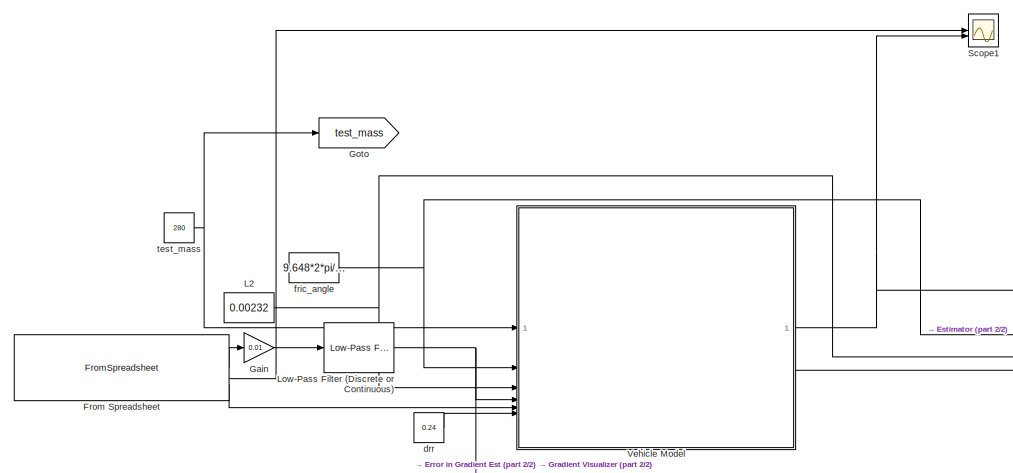
[diagram: root canvas - part 1/2, left side, full height]
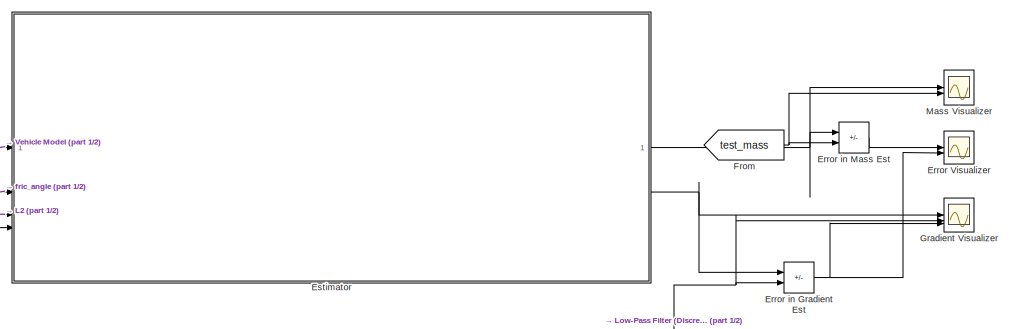
[diagram: root canvas - part 2/2, middle right region]
MODEL slx_bd5e65b6732f
KIND model
CONFIG AbsTol = auto
CONFIG EnableMultiTasking = off
CONFIG FixedStep = 0.001
CONFIG MaxStep = auto
CONFIG MinStep = auto
CONFIG RelTol = 1e-3
CONFIG SampleTimeConstraint = Unconstrained
CONFIG SolverName = ode4
CONFIG StartTime = 0.0
CONFIG StopTime = 100
BLOCK [Scope] Error Visualizer
  Floating = off
  NumInputPorts = 2
  ScopeSpecificationString = Simulink.scopes.TimeScopeBlockCfg('CurrentConfiguration', extmgr.ConfigurationSet(extmgr.Configuration('Core','General UI',true),extmgr.Configuration('Core','Source UI',true),extmgr.Configuration('Sources','WiredSimulink',true,'DataLoggingVariableName','ScopeData1'),extmgr.Configuration('Visuals','Time Domain',true,'SerializedDisplays',{struct('MinYLimReal','3.70571','MaxYLimReal','3.93861','YLabe...<+2107ch>
BLOCK [Sum] Error in Gradient Est
  IconShape = rectangular
  Inputs = +-
BLOCK [Sum] Error in Mass Est
  IconShape = rectangular
  Inputs = +-
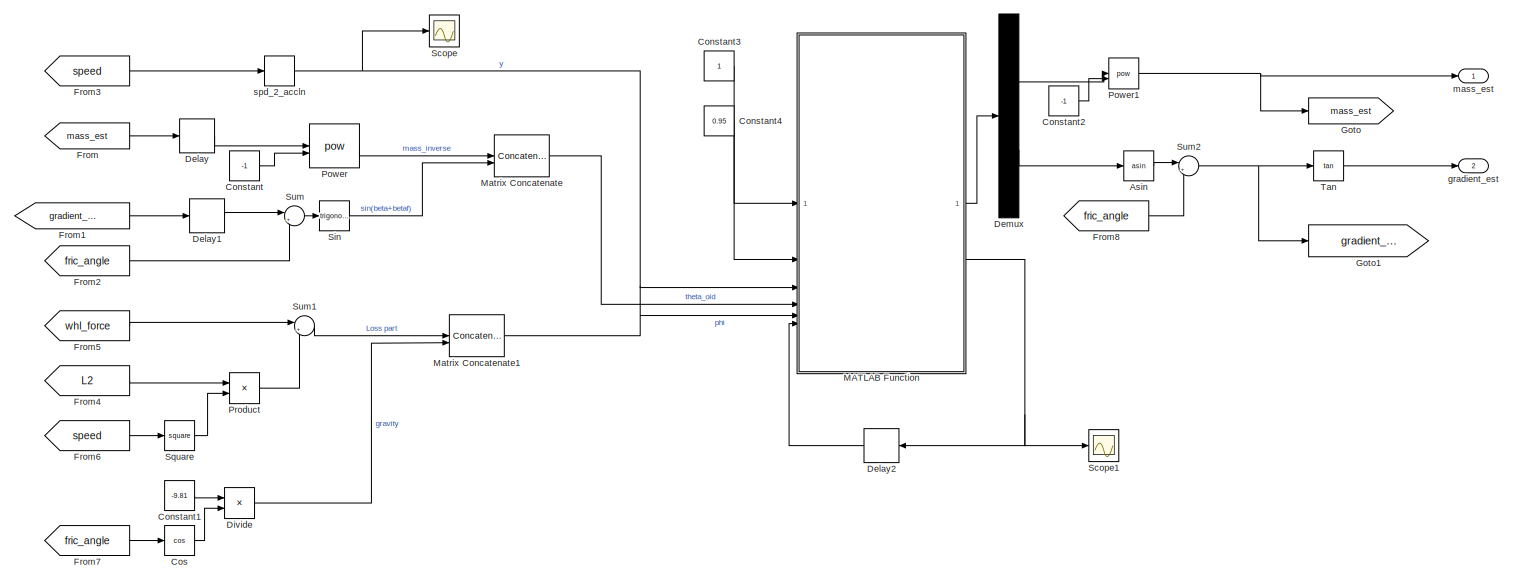
[diagram: Estimator - part 1/2, most of the canvas]
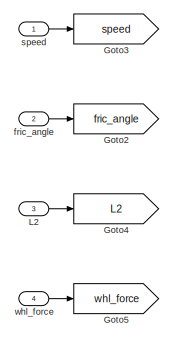
[diagram: Estimator - part 2/2, middle left region]
BLOCK [SubSystem] Estimator
BLOCK [Trigonometry] Estimator/Asin
  Operator = asin
BLOCK [Constant] Estimator/Constant
  Value = -1
BLOCK [Constant] Estimator/Constant1
  Value = -9.81
BLOCK [Constant] Estimator/Constant2
  Value = -1
BLOCK [Constant] Estimator/Constant3
BLOCK [Constant] Estimator/Constant4
  Value = 0.95
BLOCK [Trigonometry] Estimator/Cos
  Operator = cos
BLOCK [Delay] Estimator/Delay
  DelayLength = 1
  InitialCondition = 210
  InputPortMap = u0
BLOCK [Delay] Estimator/Delay1
  DelayLength = 1
  InputPortMap = u0
BLOCK [Delay] Estimator/Delay2
  DelayLength = 1
  InitialCondition = [0.1,0;0,1]
  InputPortMap = u0
  NameLocation = top
BLOCK [Demux] Estimator/Demux
  Outputs = 2
BLOCK [Product] Estimator/Divide
  Inputs = */
BLOCK [From] Estimator/From
  GotoTag = mass_est
BLOCK [From] Estimator/From1
  GotoTag = gradient_est_angle
BLOCK [From] Estimator/From2
  GotoTag = fric_angle
BLOCK [From] Estimator/From3
  GotoTag = speed
BLOCK [From] Estimator/From4
  GotoTag = L2
BLOCK [From] Estimator/From5
  GotoTag = whl_force
BLOCK [From] Estimator/From6
  GotoTag = speed
BLOCK [From] Estimator/From7
  GotoTag = fric_angle
BLOCK [From] Estimator/From8
  GotoTag = fric_angle
BLOCK [Goto] Estimator/Goto
  GotoTag = mass_est
BLOCK [Goto] Estimator/Goto1
  GotoTag = gradient_est_angle
BLOCK [Goto] Estimator/Goto2
  GotoTag = fric_angle
BLOCK [Goto] Estimator/Goto3
  GotoTag = speed
BLOCK [Goto] Estimator/Goto4
  GotoTag = L2
BLOCK [Goto] Estimator/Goto5
  GotoTag = whl_force
BLOCK [Inport] Estimator/L2
  Port = 3
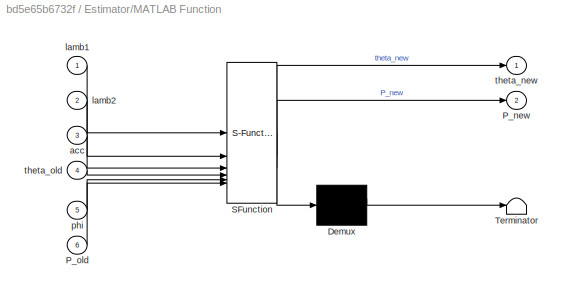
BLOCK [SubSystem] Estimator/MATLAB Function
  ErrorFcn = Stateflow.Translate.translate
  LibrarySourceBlock = simulink/User-Defined\nFunctions/MATLAB Function
  PermitHierarchicalResolution = ExplicitOnly
  SFBlockType = MATLAB Function
  TreatAsAtomicUnit = on
BLOCK [Demux] Estimator/MATLAB Function/ Demux 
  Outputs = 1
BLOCK [S-Function] Estimator/MATLAB Function/ SFunction 
  EnableBusSupport = on
  FunctionName = sf_sfun
  PortCounts = [6 3]
  SFcnIsStateOwnerBlock = off
  SFunctionDeploymentMode = off
  Tag = Stateflow S-Function 2
BLOCK [Terminator] Estimator/MATLAB Function/ Terminator 
BLOCK [Outport] Estimator/MATLAB Function/P_new
  Port = 2
BLOCK [Inport] Estimator/MATLAB Function/P_old
  Port = 6
BLOCK [Inport] Estimator/MATLAB Function/acc
  Port = 3
BLOCK [Inport] Estimator/MATLAB Function/lamb1
BLOCK [Inport] Estimator/MATLAB Function/lamb2
  Port = 2
BLOCK [Inport] Estimator/MATLAB Function/phi
  Port = 5
BLOCK [Outport] Estimator/MATLAB Function/theta_new
BLOCK [Inport] Estimator/MATLAB Function/theta_old
  Port = 4
BLOCK [Concatenate] Estimator/Matrix Concatenate
  ConcatenateDimension = 2
  Mode = Multidimensional array
BLOCK [Concatenate] Estimator/Matrix Concatenate1
  ConcatenateDimension = 2
  Mode = Multidimensional array
BLOCK [Math] Estimator/Power
  Operator = pow
BLOCK [Math] Estimator/Power1
  Operator = pow
BLOCK [Product] Estimator/Product
BLOCK [Scope] Estimator/Scope
  Floating = off
  NumInputPorts = 1
  ScopeSpecificationString = Simulink.scopes.TimeScopeBlockCfg('CurrentConfiguration', extmgr.ConfigurationSet(extmgr.Configuration('Core','General UI',true),extmgr.Configuration('Core','Source UI',true),extmgr.Configuration('Sources','WiredSimulink',true,'DataLoggingVariableName','ScopeData6'),extmgr.Configuration('Visuals','Time Domain',true,'SerializedDisplays',{struct('MinYLimReal','-1.8028','MaxYLimReal','4.02627','YLabe...<+1455ch>
BLOCK [Scope] Estimator/Scope1
  Floating = off
  NumInputPorts = 1
  ScopeSpecificationString = Simulink.scopes.TimeScopeBlockCfg('CurrentConfiguration', extmgr.ConfigurationSet(extmgr.Configuration('Core','General UI',true),extmgr.Configuration('Core','Source UI',true),extmgr.Configuration('Sources','WiredSimulink',true,'DataLoggingVariableName','ScopeData2'),extmgr.Configuration('Visuals','Time Domain',true,'SerializedDisplays',{struct('MinYLimReal','-0.10323','MaxYLimReal','0.01702','YLab...<+1506ch>
BLOCK [Trigonometry] Estimator/Sin
BLOCK [Math] Estimator/Square
  Operator = square
BLOCK [Sum] Estimator/Sum
  Inputs = |++
BLOCK [Sum] Estimator/Sum1
  Inputs = |+-
BLOCK [Sum] Estimator/Sum2
  Inputs = |+-
BLOCK [Trigonometry] Estimator/Tan
  Operator = tan
BLOCK [Inport] Estimator/fric_angle
  Port = 2
BLOCK [Outport] Estimator/gradient_est
  Port = 2
BLOCK [Outport] Estimator/mass_est
BLOCK [Derivative] Estimator/spd_2_accln
BLOCK [Inport] Estimator/speed
BLOCK [Inport] Estimator/whl_force
  Port = 4
BLOCK [From] From
  GotoTag = test_mass
BLOCK [FromSpreadsheet] From Spreadsheet
  FileName = grade_def.xlsx
BLOCK [Gain] Gain
  Gain = 0.01
BLOCK [Goto] Goto
  GotoTag = test_mass
BLOCK [Scope] Gradient Visualizer
  Floating = off
  NumInputPorts = 3
  ScopeSpecificationString = Simulink.scopes.TimeScopeBlockCfg('CurrentConfiguration', extmgr.ConfigurationSet(extmgr.Configuration('Core','General UI',true),extmgr.Configuration('Core','Source UI',true),extmgr.Configuration('Sources','WiredSimulink',true,'DataLoggingVariableName','ScopeData1'),extmgr.Configuration('Visuals','Time Domain',true,'SerializedDisplays',{struct('MinYLimReal','-0.17431','MaxYLimReal','-0.14813','YLa...<+1512ch>
BLOCK [Constant] L2
  Value = 0.00232
BLOCK [Reference] Low-Pass Filter (Discrete or Continuous)  REF=eeGeneralControl/Low-Pass Filter
(Discrete or Continuous)
  LibrarySourceBlock = ee_sl_lib/General Control/Low-Pass Filter\n(Discrete or Continuous)
  SourceBlock = eeGeneralControl/Low-Pass Filter\n(Discrete or Continuous)
  SourceType = Low-Pass Filter (Discrete or Continuous)
BLOCK [Scope] Mass Visualizer
  Floating = off
  NumInputPorts = 2
  ScopeSpecificationString = Simulink.scopes.TimeScopeBlockCfg('CurrentConfiguration', extmgr.ConfigurationSet(extmgr.Configuration('Core','General UI',true),extmgr.Configuration('Core','Source UI',true),extmgr.Configuration('Sources','WiredSimulink',true,'DataLoggingVariableName','ScopeData5'),extmgr.Configuration('Visuals','Time Domain',true,'SerializedDisplays',{struct('MinYLimReal','283.68381','MaxYLimReal','283.93974','Y...<+2101ch>
BLOCK [Scope] Scope1
  Floating = off
  NumInputPorts = 2
  ScopeSpecificationString = Simulink.scopes.TimeScopeBlockCfg('CurrentConfiguration', extmgr.ConfigurationSet(extmgr.Configuration('Core','General UI',true),extmgr.Configuration('Core','Source UI',true),extmgr.Configuration('Sources','WiredSimulink',true,'DataLoggingVariableName','ScopeData3'),extmgr.Configuration('Visuals','Time Domain',true,'SerializedDisplays',{struct('MinYLimReal','-1.955','MaxYLimReal','17.57813','YLabe...<+1422ch>
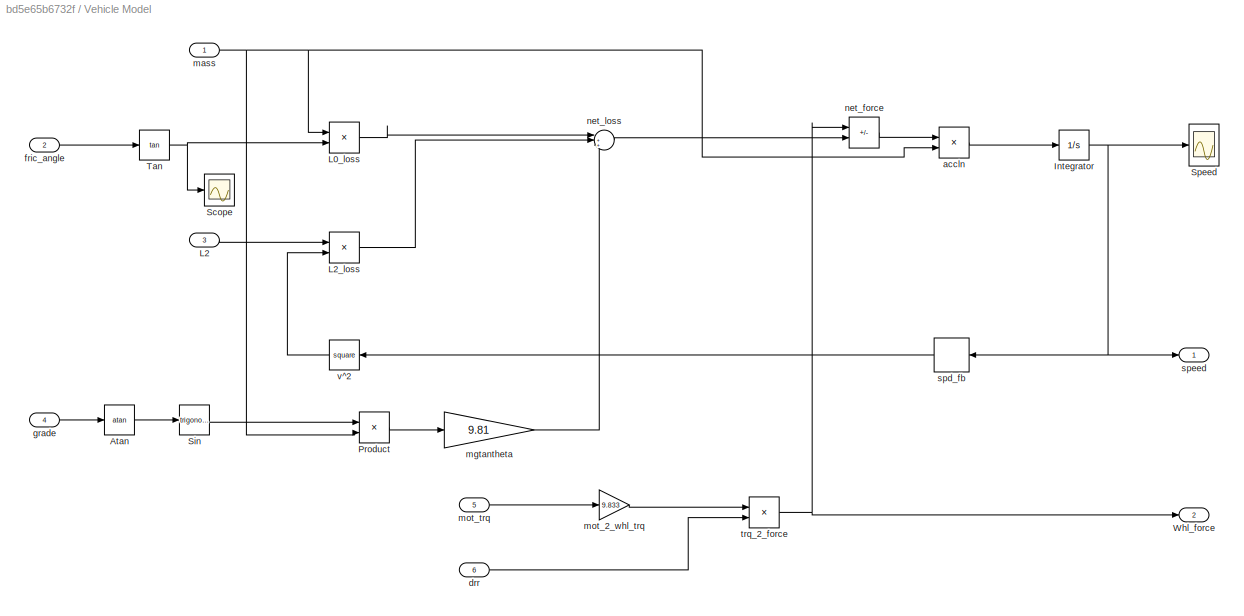
BLOCK [SubSystem] Vehicle Model
BLOCK [Trigonometry] Vehicle Model/Atan
  Operator = atan
BLOCK [Integrator] Vehicle Model/Integrator
BLOCK [Product] Vehicle Model/L0_loss
BLOCK [Inport] Vehicle Model/L2
  Port = 3
BLOCK [Product] Vehicle Model/L2_loss
BLOCK [Product] Vehicle Model/Product
BLOCK [Scope] Vehicle Model/Scope
  Floating = off
  NumInputPorts = 1
  ScopeSpecificationString = Simulink.scopes.TimeScopeBlockCfg('CurrentConfiguration', extmgr.ConfigurationSet(extmgr.Configuration('Core','General UI',true),extmgr.Configuration('Core','Source UI',true),extmgr.Configuration('Sources','WiredSimulink',true,'DataLoggingVariableName','ScopeData4'),extmgr.Configuration('Visuals','Time Domain',true,'SerializedDisplays',{struct('MinYLimReal','0.07','MaxYLimReal','0.27','YLabelReal'...<+1371ch>
BLOCK [Trigonometry] Vehicle Model/Sin
BLOCK [Scope] Vehicle Model/Speed
  Floating = off
  NumInputPorts = 1
  ScopeSpecificationString = Simulink.scopes.TimeScopeBlockCfg('CurrentConfiguration', extmgr.ConfigurationSet(extmgr.Configuration('Core','General UI',true),extmgr.Configuration('Core','Source UI',true),extmgr.Configuration('Sources','WiredSimulink',true),extmgr.Configuration('Visuals','Time Domain',true,'SerializedDisplays',{struct('MinYLimReal','-1.8771','MaxYLimReal','16.89385','YLabelReal','','MinYLimMag','0.00000','MaxY...<+1359ch>
BLOCK [Trigonometry] Vehicle Model/Tan
  Operator = tan
BLOCK [Outport] Vehicle Model/Whl_force
  Port = 2
BLOCK [Product] Vehicle Model/accln
  Inputs = */
BLOCK [Inport] Vehicle Model/drr
  Port = 6
BLOCK [Inport] Vehicle Model/fric_angle
  Port = 2
BLOCK [Inport] Vehicle Model/grade
  Port = 4
BLOCK [Inport] Vehicle Model/mass
BLOCK [Gain] Vehicle Model/mgtantheta
  Gain = 9.81
BLOCK [Gain] Vehicle Model/mot_2_whl_trq
  Gain = 9.833
BLOCK [Inport] Vehicle Model/mot_trq
  Port = 5
BLOCK [Sum] Vehicle Model/net_force
  IconShape = rectangular
  Inputs = +-
BLOCK [Sum] Vehicle Model/net_loss
  Inputs = |+++
  NameLocation = top
BLOCK [Delay] Vehicle Model/spd_fb
  DelayLength = 1
  InitialCondition = 0
  InputPortMap = u0
BLOCK [Outport] Vehicle Model/speed
BLOCK [Product] Vehicle Model/trq_2_force
  Inputs = */
BLOCK [Math] Vehicle Model/v^2
  Operator = square
BLOCK [Constant] drr
  Value = 0.24
BLOCK [Constant] fric_angle
  Value = 9.648*2*pi/360
BLOCK [Constant] test_mass
  Value = 280
NET Error in Gradient Est:1 -> Error Visualizer:2, Gradient Visualizer:3
LINE Error in Mass Est:1 -> Error Visualizer:1
LINE Estimator/Asin:1 -> Estimator/Sum2:1
LINE Estimator/Constant1:1 -> Estimator/Divide:1
LINE Estimator/Constant2:1 -> Estimator/Power1:2
LINE Estimator/Constant3:1 -> Estimator/MATLAB Function:1
LINE Estimator/Constant4:1 -> Estimator/MATLAB Function:2
LINE Estimator/Constant:1 -> Estimator/Power:2
LINE Estimator/Cos:1 -> Estimator/Divide:2
LINE Estimator/Delay1:1 -> Estimator/Sum:1
LINE Estimator/Delay2:1 -> Estimator/MATLAB Function:6
LINE Estimator/Delay:1 -> Estimator/Power:1
LINE Estimator/Demux:1 -> Estimator/Power1:1
LINE Estimator/Demux:2 -> Estimator/Asin:1
LINE Estimator/Divide:1 -> Estimator/Matrix Concatenate1:2
LINE Estimator/From1:1 -> Estimator/Delay1:1
LINE Estimator/From2:1 -> Estimator/Sum:2
LINE Estimator/From3:1 -> Estimator/spd_2_accln:1
LINE Estimator/From4:1 -> Estimator/Product:1
LINE Estimator/From5:1 -> Estimator/Sum1:1
LINE Estimator/From6:1 -> Estimator/Square:1
LINE Estimator/From7:1 -> Estimator/Cos:1
LINE Estimator/From8:1 -> Estimator/Sum2:2
LINE Estimator/From:1 -> Estimator/Delay:1
LINE Estimator/L2:1 -> Estimator/Goto4:1
LINE Estimator/MATLAB Function:1 -> Estimator/Demux:1
NET Estimator/MATLAB Function:2 -> Estimator/Delay2:1, Estimator/Scope1:1
LINE Estimator/Matrix Concatenate1:1 -> Estimator/MATLAB Function:5
LINE Estimator/Matrix Concatenate:1 -> Estimator/MATLAB Function:4
NET Estimator/Power1:1 -> Estimator/Goto:1, Estimator/mass_est:1
LINE Estimator/Power:1 -> Estimator/Matrix Concatenate:1
LINE Estimator/Product:1 -> Estimator/Sum1:2
LINE Estimator/Sin:1 -> Estimator/Matrix Concatenate:2
LINE Estimator/Square:1 -> Estimator/Product:2
LINE Estimator/Sum1:1 -> Estimator/Matrix Concatenate1:1
NET Estimator/Sum2:1 -> Estimator/Goto1:1, Estimator/Tan:1
LINE Estimator/Sum:1 -> Estimator/Sin:1
LINE Estimator/Tan:1 -> Estimator/gradient_est:1
LINE Estimator/fric_angle:1 -> Estimator/Goto2:1
NET Estimator/spd_2_accln:1 -> Estimator/MATLAB Function:3, Estimator/Scope:1
LINE Estimator/speed:1 -> Estimator/Goto3:1
LINE Estimator/whl_force:1 -> Estimator/Goto5:1
NET Estimator:1 -> Error in Mass Est:1, Mass Visualizer:1
NET Estimator:2 -> Error in Gradient Est:1, Gradient Visualizer:1
LINE From Spreadsheet:1 -> Gain:1
LINE From Spreadsheet:2 -> Scope1:1
LINE From Spreadsheet:3 -> Vehicle Model:5
NET From:1 -> Error in Mass Est:2, Mass Visualizer:2
LINE Gain:1 -> Low-Pass Filter (Discrete or Continuous):1
NET L2:1 -> Estimator:3, Vehicle Model:3
NET Low-Pass Filter (Discrete or Continuous):1 -> Error in Gradient Est:2, Gradient Visualizer:2, Vehicle Model:4
LINE Vehicle Model/Atan:1 -> Vehicle Model/Sin:1
NET Vehicle Model/Integrator:1 -> Vehicle Model/Speed:1, Vehicle Model/spd_fb:1, Vehicle Model/speed:1
LINE Vehicle Model/L0_loss:1 -> Vehicle Model/net_loss:1
LINE Vehicle Model/L2:1 -> Vehicle Model/L2_loss:1
LINE Vehicle Model/L2_loss:1 -> Vehicle Model/net_loss:2
LINE Vehicle Model/Product:1 -> Vehicle Model/mgtantheta:1
LINE Vehicle Model/Sin:1 -> Vehicle Model/Product:1
NET Vehicle Model/Tan:1 -> Vehicle Model/L0_loss:2, Vehicle Model/Scope:1
LINE Vehicle Model/accln:1 -> Vehicle Model/Integrator:1
LINE Vehicle Model/drr:1 -> Vehicle Model/trq_2_force:2
LINE Vehicle Model/fric_angle:1 -> Vehicle Model/Tan:1
LINE Vehicle Model/grade:1 -> Vehicle Model/Atan:1
NET Vehicle Model/mass:1 -> Vehicle Model/L0_loss:1, Vehicle Model/Product:2, Vehicle Model/accln:2
LINE Vehicle Model/mgtantheta:1 -> Vehicle Model/net_loss:3
LINE Vehicle Model/mot_2_whl_trq:1 -> Vehicle Model/trq_2_force:1
LINE Vehicle Model/mot_trq:1 -> Vehicle Model/mot_2_whl_trq:1
LINE Vehicle Model/net_force:1 -> Vehicle Model/accln:1
LINE Vehicle Model/net_loss:1 -> Vehicle Model/net_force:2
LINE Vehicle Model/spd_fb:1 -> Vehicle Model/v^2:1
NET Vehicle Model/trq_2_force:1 -> Vehicle Model/Whl_force:1, Vehicle Model/net_force:1
LINE Vehicle Model/v^2:1 -> Vehicle Model/L2_loss:2
NET Vehicle Model:1 -> Estimator:1, Scope1:2
LINE Vehicle Model:2 -> Estimator:4
LINE drr:1 -> Vehicle Model:6
NET fric_angle:1 -> Estimator:2, Vehicle Model:2
NET test_mass:1 -> Goto:1, Vehicle Model:1
note: NET lines group one-source signal fan-out (src -> all destinations, sorted); 1:1 wires keep LINE
CHART Estimator/MATLAB Function states=1 transitions=1
  STATE_LABEL 'eML_blk_kernel()'
  STATE_LABEL "SCRIPT:\nfunction [theta_new,P_new] = fcn(lamb1, lamb2, acc, theta_old, phi, P_old)\n\ntheta_old = theta_old';\nphi = phi';\ny = acc;\nlamb = [lamb1, 0; 0, lamb2];\n\nerr = y - phi'*theta_old;\nL_new = P_old*phi*((1+phi'*P_old*phi)^-1);\n\nP_new = (lamb^-1)*([1,0;0,1]-L_new*phi')*P_old*(lamb^-1);\n\ntheta_new = theta_old+L_new*err;\n\n"
CHART  states=0 transitions=0
